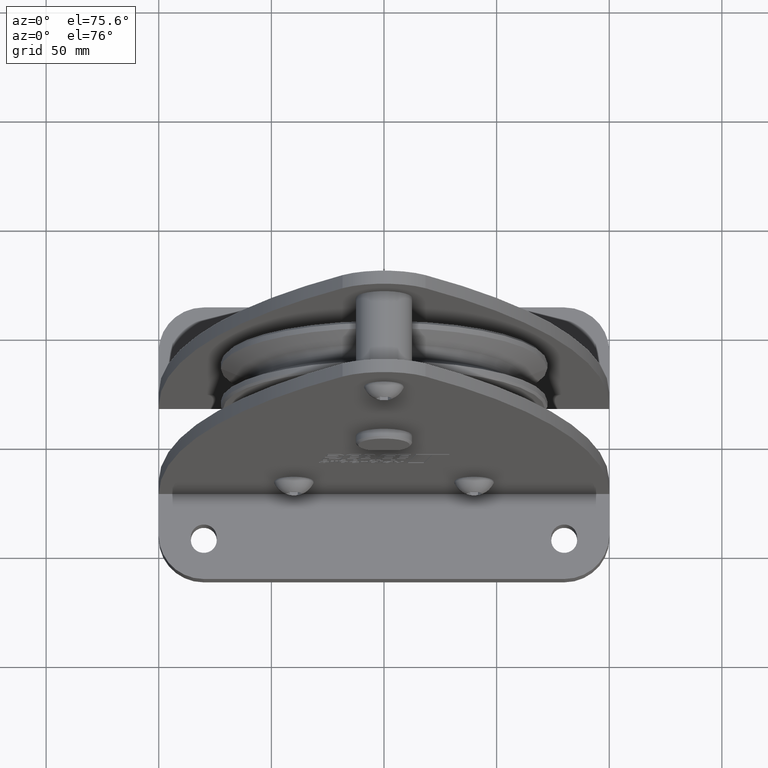
[diagram: clean part render]
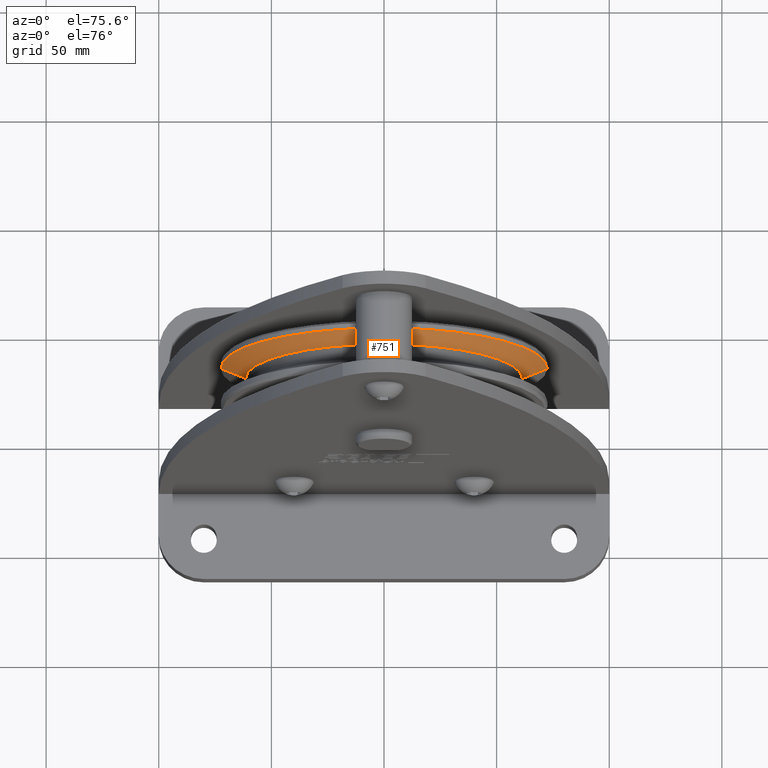
[diagram: same view with one face highlighted and labeled with its STEP entity id]
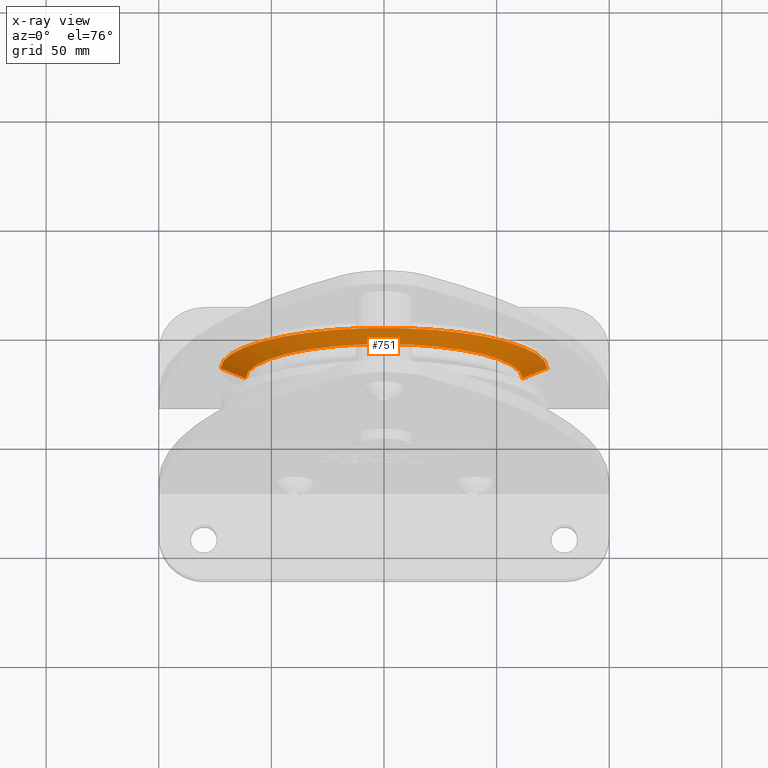
[diagram: x-ray of the same camera — body ghosted, the highlighted face saturated]
A machine part, auxiliary view. The second image highlights one B-rep face of the part: STEP entity #751.
The next image is the same camera in x-ray: the body ghosted, the highlighted face saturated — about 2% of this face is hidden behind the body in this view.
In plain terms, the highlighted conical surface has half-angle 67.5 deg.
Its self-contained STEP definition (entity closure, byte-faithful):
#751=ADVANCED_FACE('',(#2134),#2135,.T.);
#2134=FACE_OUTER_BOUND('',#4240,.T.);
#2135=CONICAL_SURFACE('',#4241,66.98770651,1.17809724483896);
#4240=EDGE_LOOP('',(#6509,#6510,#6511,#6512));
#4241=AXIS2_PLACEMENT_3D('',#6513,#6514,#6515);
#6509=ORIENTED_EDGE('',*,*,#12722,.F.);
#6510=ORIENTED_EDGE('',*,*,#12723,.T.);
#6511=ORIENTED_EDGE('',*,*,#12724,.F.);
#6512=ORIENTED_EDGE('',*,*,#12725,.F.);
#6513=CARTESIAN_POINT('',(0.0,5.239681225,0.0));
#6514=DIRECTION('',(-0.0,1.0,-0.0));
#6515=DIRECTION('',(1.0,0.0,0.0));
#12722=EDGE_CURVE('',#15334,#15330,#15335,.T.);
#12723=EDGE_CURVE('',#15334,#15336,#15337,.T.);
#12724=EDGE_CURVE('',#15328,#15336,#15338,.T.);
#12725=EDGE_CURVE('',#15330,#15328,#15339,.T.);
#15328=VERTEX_POINT('',#19782);
#15330=VERTEX_POINT('',#19784);
#15334=VERTEX_POINT('',#19788);
#15335=LINE('',#19789,#19790);
#15336=VERTEX_POINT('',#19791);
#15337=CIRCLE('',#19792,72.5);
#15338=LINE('',#19793,#19794);
#15339=CIRCLE('',#19795,61.47541302);
#19782=CARTESIAN_POINT('',(-61.47541302,2.9564145,7.52856677812045E-015));
#19784=CARTESIAN_POINT('',(61.47541302,2.9564145,0.0));
#19788=CARTESIAN_POINT('',(72.5,7.52294795,0.0));
#19789=CARTESIAN_POINT('',(66.98770651,5.239681225,-8.20362803596938E-015));
#19790=VECTOR('',#26855,1.0);
#19791=CARTESIAN_POINT('',(-72.5,7.52294795,8.87868929381831E-015));
#19792=AXIS2_PLACEMENT_3D('',#26856,#26857,#26858);
#19793=CARTESIAN_POINT('',(-66.98770651,5.239681225,8.20362803596938E-015));
#19794=VECTOR('',#26859,1.0);
#19795=AXIS2_PLACEMENT_3D('',#26860,#26861,#26862);
#26855=DIRECTION('',(-0.923879532412857,-0.382683432602721,1.13142611216716E-016));
#26856=CARTESIAN_POINT('',(0.0,7.52294795,0.0));
#26857=DIRECTION('',(0.0,-1.0,0.0));
#26858=DIRECTION('',(1.0,0.0,0.0));
#26859=DIRECTION('',(-0.923879532412857,0.382683432602721,1.13142611216716E-016));
#26860=CARTESIAN_POINT('',(0.0,2.9564145,0.0));
#26861=DIRECTION('',(0.0,-1.0,0.0));
#26862=DIRECTION('',(1.0,0.0,0.0));